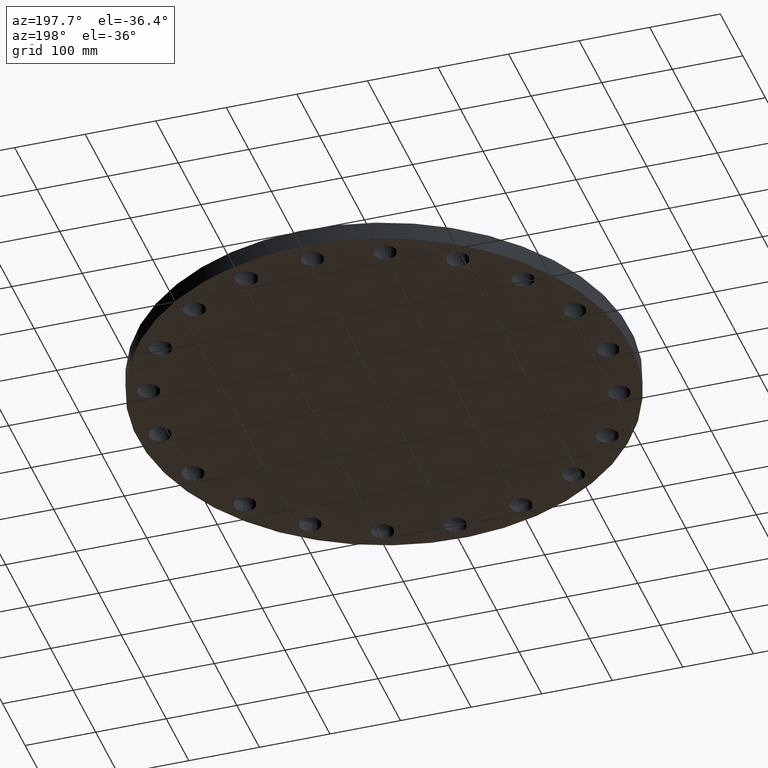
[diagram: clean part render]
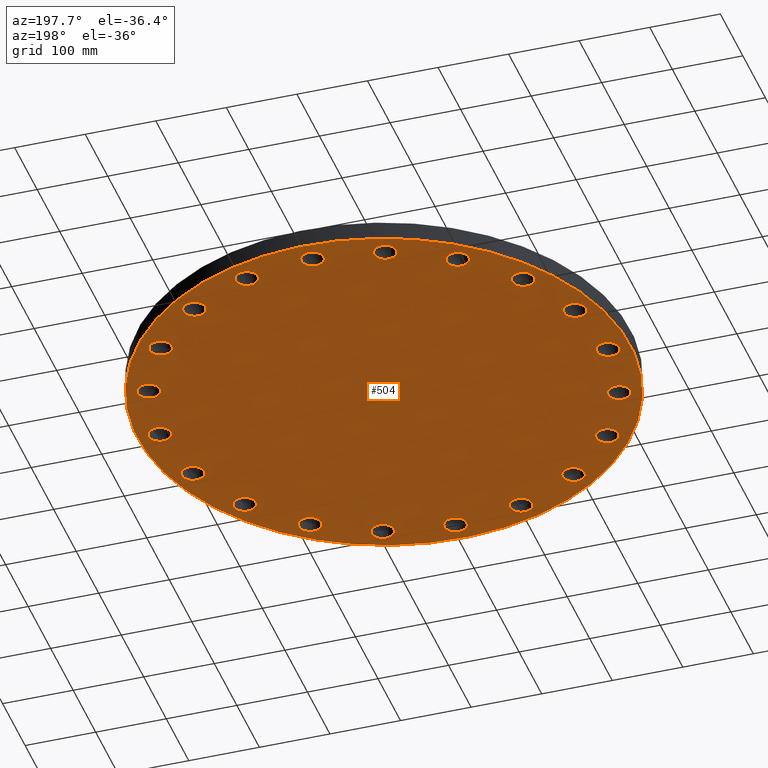
[diagram: same view with one face highlighted and labeled with its STEP entity id]
A machine part, auxiliary view. The second image highlights one B-rep face of the part: STEP entity #504.
In plain terms, the highlighted planar face has unit normal (0, 0, 1).
Its self-contained STEP definition (entity closure, byte-faithful):
#51=AXIS2_PLACEMENT_3D('Circle Axis2P3D',#49,#50,$) ;
#77=AXIS2_PLACEMENT_3D('Circle Axis2P3D',#75,#76,$) ;
#122=AXIS2_PLACEMENT_3D('Circle Axis2P3D',#120,#121,$) ;
#139=AXIS2_PLACEMENT_3D('Circle Axis2P3D',#137,#138,$) ;
#152=AXIS2_PLACEMENT_3D('Plane Axis2P3D',#149,#150,#151) ;
#164=AXIS2_PLACEMENT_3D('Circle Axis2P3D',#162,#163,$) ;
#173=AXIS2_PLACEMENT_3D('Circle Axis2P3D',#171,#172,$) ;
#182=AXIS2_PLACEMENT_3D('Circle Axis2P3D',#180,#181,$) ;
#191=AXIS2_PLACEMENT_3D('Circle Axis2P3D',#189,#190,$) ;
#200=AXIS2_PLACEMENT_3D('Circle Axis2P3D',#198,#199,$) ;
#209=AXIS2_PLACEMENT_3D('Circle Axis2P3D',#207,#208,$) ;
#218=AXIS2_PLACEMENT_3D('Circle Axis2P3D',#216,#217,$) ;
#227=AXIS2_PLACEMENT_3D('Circle Axis2P3D',#225,#226,$) ;
#236=AXIS2_PLACEMENT_3D('Circle Axis2P3D',#234,#235,$) ;
#245=AXIS2_PLACEMENT_3D('Circle Axis2P3D',#243,#244,$) ;
#254=AXIS2_PLACEMENT_3D('Circle Axis2P3D',#252,#253,$) ;
#263=AXIS2_PLACEMENT_3D('Circle Axis2P3D',#261,#262,$) ;
#272=AXIS2_PLACEMENT_3D('Circle Axis2P3D',#270,#271,$) ;
#281=AXIS2_PLACEMENT_3D('Circle Axis2P3D',#279,#280,$) ;
#290=AXIS2_PLACEMENT_3D('Circle Axis2P3D',#288,#289,$) ;
#299=AXIS2_PLACEMENT_3D('Circle Axis2P3D',#297,#298,$) ;
#308=AXIS2_PLACEMENT_3D('Circle Axis2P3D',#306,#307,$) ;
#317=AXIS2_PLACEMENT_3D('Circle Axis2P3D',#315,#316,$) ;
#326=AXIS2_PLACEMENT_3D('Circle Axis2P3D',#324,#325,$) ;
#335=AXIS2_PLACEMENT_3D('Circle Axis2P3D',#333,#334,$) ;
#344=AXIS2_PLACEMENT_3D('Circle Axis2P3D',#342,#343,$) ;
#353=AXIS2_PLACEMENT_3D('Circle Axis2P3D',#351,#352,$) ;
#362=AXIS2_PLACEMENT_3D('Circle Axis2P3D',#360,#361,$) ;
#371=AXIS2_PLACEMENT_3D('Circle Axis2P3D',#369,#370,$) ;
#380=AXIS2_PLACEMENT_3D('Circle Axis2P3D',#378,#379,$) ;
#389=AXIS2_PLACEMENT_3D('Circle Axis2P3D',#387,#388,$) ;
#398=AXIS2_PLACEMENT_3D('Circle Axis2P3D',#396,#397,$) ;
#407=AXIS2_PLACEMENT_3D('Circle Axis2P3D',#405,#406,$) ;
#416=AXIS2_PLACEMENT_3D('Circle Axis2P3D',#414,#415,$) ;
#425=AXIS2_PLACEMENT_3D('Circle Axis2P3D',#423,#424,$) ;
#434=AXIS2_PLACEMENT_3D('Circle Axis2P3D',#432,#433,$) ;
#443=AXIS2_PLACEMENT_3D('Circle Axis2P3D',#441,#442,$) ;
#452=AXIS2_PLACEMENT_3D('Circle Axis2P3D',#450,#451,$) ;
#461=AXIS2_PLACEMENT_3D('Circle Axis2P3D',#459,#460,$) ;
#470=AXIS2_PLACEMENT_3D('Circle Axis2P3D',#468,#469,$) ;
#479=AXIS2_PLACEMENT_3D('Circle Axis2P3D',#477,#478,$) ;
#488=AXIS2_PLACEMENT_3D('Circle Axis2P3D',#486,#487,$) ;
#497=AXIS2_PLACEMENT_3D('Circle Axis2P3D',#495,#496,$) ;
#44=CARTESIAN_POINT('Vertex',(11.9515108989,0.299640961629,0.)) ;
#49=CARTESIAN_POINT('Axis2P3D Location',(12.5000000001,0.,0.)) ;
#53=CARTESIAN_POINT('Vertex',(13.0484891012,-0.299640961629,0.)) ;
#75=CARTESIAN_POINT('Axis2P3D Location',(12.5000000001,0.,0.)) ;
#101=CARTESIAN_POINT('Vertex',(12.066760226,6.59210115583,6.99353086378E-017)) ;
#117=CARTESIAN_POINT('Vertex',(-12.066760226,-6.59210115583,6.99353086378E-017)) ;
#120=CARTESIAN_POINT('Axis2P3D Location',(0.,0.,0.)) ;
#137=CARTESIAN_POINT('Axis2P3D Location',(0.,0.,0.)) ;
#149=CARTESIAN_POINT('Axis2P3D Location',(0.,0.,0.)) ;
#162=CARTESIAN_POINT('Axis2P3D Location',(11.8882064537,3.8627124297,0.)) ;
#166=CARTESIAN_POINT('Vertex',(11.2739681706,3.97819546531,0.)) ;
#168=CARTESIAN_POINT('Vertex',(12.5024447369,3.74722939409,0.)) ;
#171=CARTESIAN_POINT('Axis2P3D Location',(11.8882064537,3.8627124297,0.)) ;
#180=CARTESIAN_POINT('Axis2P3D Location',(10.1127124297,7.34731565369,0.)) ;
#184=CARTESIAN_POINT('Vertex',(9.49285088741,7.26733647913,0.)) ;
#186=CARTESIAN_POINT('Vertex',(10.732573972,7.42729482824,0.)) ;
#189=CARTESIAN_POINT('Axis2P3D Location',(10.1127124297,7.34731565369,0.)) ;
#198=CARTESIAN_POINT('Axis2P3D Location',(7.34731565369,10.1127124297,0.)) ;
#202=CARTESIAN_POINT('Vertex',(6.7825072188,9.84509996387,0.)) ;
#204=CARTESIAN_POINT('Vertex',(7.91212408857,10.3803248956,0.)) ;
#207=CARTESIAN_POINT('Axis2P3D Location',(7.34731565369,10.1127124297,0.)) ;
#216=CARTESIAN_POINT('Axis2P3D Location',(3.8627124297,11.8882064537,0.)) ;
#220=CARTESIAN_POINT('Vertex',(3.4082444871,11.4591564693,0.)) ;
#222=CARTESIAN_POINT('Vertex',(4.3171803723,12.3172564382,0.)) ;
#225=CARTESIAN_POINT('Axis2P3D Location',(3.8627124297,11.8882064537,0.)) ;
#234=CARTESIAN_POINT('Axis2P3D Location',(4.19611851827E-015,12.5000000001,0.)) ;
#238=CARTESIAN_POINT('Vertex',(-0.299640961629,11.9515108989,0.)) ;
#240=CARTESIAN_POINT('Vertex',(0.299640961629,13.0484891012,0.)) ;
#243=CARTESIAN_POINT('Axis2P3D Location',(3.21702419734E-015,12.5,0.)) ;
#252=CARTESIAN_POINT('Axis2P3D Location',(-3.8627124297,11.8882064537,0.)) ;
#256=CARTESIAN_POINT('Vertex',(-3.97819546531,11.2739681706,0.)) ;
#258=CARTESIAN_POINT('Vertex',(-3.74722939409,12.5024447369,0.)) ;
#261=CARTESIAN_POINT('Axis2P3D Location',(-3.8627124297,11.8882064537,0.)) ;
#270=CARTESIAN_POINT('Axis2P3D Location',(-7.34731565369,10.1127124297,0.)) ;
#274=CARTESIAN_POINT('Vertex',(-7.26733647913,9.49285088741,0.)) ;
#276=CARTESIAN_POINT('Vertex',(-7.42729482824,10.732573972,0.)) ;
#279=CARTESIAN_POINT('Axis2P3D Location',(-7.34731565369,10.1127124297,0.)) ;
#288=CARTESIAN_POINT('Axis2P3D Location',(-10.1127124297,7.34731565369,0.)) ;
#292=CARTESIAN_POINT('Vertex',(-9.84509996387,6.7825072188,0.)) ;
#294=CARTESIAN_POINT('Vertex',(-10.3803248956,7.91212408857,0.)) ;
#297=CARTESIAN_POINT('Axis2P3D Location',(-10.1127124297,7.34731565369,0.)) ;
#306=CARTESIAN_POINT('Axis2P3D Location',(-11.8882064537,3.8627124297,0.)) ;
#310=CARTESIAN_POINT('Vertex',(-11.4591564693,3.4082444871,0.)) ;
#312=CARTESIAN_POINT('Vertex',(-12.3172564382,4.3171803723,0.)) ;
#315=CARTESIAN_POINT('Axis2P3D Location',(-11.8882064537,3.8627124297,0.)) ;
#324=CARTESIAN_POINT('Axis2P3D Location',(-12.5000000001,5.66475999966E-015,0.)) ;
#328=CARTESIAN_POINT('Vertex',(-11.9515108989,-0.299640961629,0.)) ;
#330=CARTESIAN_POINT('Vertex',(-13.0484891012,0.299640961629,0.)) ;
#333=CARTESIAN_POINT('Axis2P3D Location',(-12.5000000001,7.62294864152E-015,0.)) ;
#342=CARTESIAN_POINT('Axis2P3D Location',(-11.8882064537,-3.8627124297,0.)) ;
#346=CARTESIAN_POINT('Vertex',(-11.2739681706,-3.97819546531,0.)) ;
#348=CARTESIAN_POINT('Vertex',(-12.5024447369,-3.74722939409,0.)) ;
#351=CARTESIAN_POINT('Axis2P3D Location',(-11.8882064537,-3.8627124297,0.)) ;
#360=CARTESIAN_POINT('Axis2P3D Location',(-10.1127124297,-7.34731565369,0.)) ;
#364=CARTESIAN_POINT('Vertex',(-9.49285088741,-7.26733647913,0.)) ;
#366=CARTESIAN_POINT('Vertex',(-10.732573972,-7.42729482824,0.)) ;
#369=CARTESIAN_POINT('Axis2P3D Location',(-10.1127124297,-7.34731565369,0.)) ;
#378=CARTESIAN_POINT('Axis2P3D Location',(-7.34731565369,-10.1127124297,0.)) ;
#382=CARTESIAN_POINT('Vertex',(-6.7825072188,-9.84509996387,0.)) ;
#384=CARTESIAN_POINT('Vertex',(-7.91212408857,-10.3803248956,0.)) ;
#387=CARTESIAN_POINT('Axis2P3D Location',(-7.34731565369,-10.1127124297,0.)) ;
#396=CARTESIAN_POINT('Axis2P3D Location',(-3.8627124297,-11.8882064537,0.)) ;
#400=CARTESIAN_POINT('Vertex',(-3.4082444871,-11.4591564693,0.)) ;
#402=CARTESIAN_POINT('Vertex',(-4.3171803723,-12.3172564382,0.)) ;
#405=CARTESIAN_POINT('Axis2P3D Location',(-3.8627124297,-11.8882064537,0.)) ;
#414=CARTESIAN_POINT('Axis2P3D Location',(-1.32877086412E-014,-12.5000000001,0.)) ;
#418=CARTESIAN_POINT('Vertex',(0.299640961629,-11.9515108989,0.)) ;
#420=CARTESIAN_POINT('Vertex',(-0.299640961629,-13.0484891012,0.)) ;
#423=CARTESIAN_POINT('Axis2P3D Location',(-1.32877086412E-014,-12.5000000001,0.)) ;
#432=CARTESIAN_POINT('Axis2P3D Location',(3.8627124297,-11.8882064537,0.)) ;
#436=CARTESIAN_POINT('Vertex',(3.97819546531,-11.2739681706,0.)) ;
#438=CARTESIAN_POINT('Vertex',(3.74722939409,-12.5024447369,0.)) ;
#441=CARTESIAN_POINT('Axis2P3D Location',(3.8627124297,-11.8882064537,0.)) ;
#450=CARTESIAN_POINT('Axis2P3D Location',(7.34731565369,-10.1127124297,0.)) ;
#454=CARTESIAN_POINT('Vertex',(7.26733647913,-9.49285088741,0.)) ;
#456=CARTESIAN_POINT('Vertex',(7.42729482824,-10.732573972,0.)) ;
#459=CARTESIAN_POINT('Axis2P3D Location',(7.34731565369,-10.1127124297,0.)) ;
#468=CARTESIAN_POINT('Axis2P3D Location',(10.1127124297,-7.34731565369,0.)) ;
#472=CARTESIAN_POINT('Vertex',(9.84509996387,-6.7825072188,0.)) ;
#474=CARTESIAN_POINT('Vertex',(10.3803248956,-7.91212408857,0.)) ;
#477=CARTESIAN_POINT('Axis2P3D Location',(10.1127124297,-7.34731565369,0.)) ;
#486=CARTESIAN_POINT('Axis2P3D Location',(11.8882064537,-3.8627124297,0.)) ;
#490=CARTESIAN_POINT('Vertex',(11.4591564693,-3.4082444871,0.)) ;
#492=CARTESIAN_POINT('Vertex',(12.3172564382,-4.3171803723,0.)) ;
#495=CARTESIAN_POINT('Axis2P3D Location',(11.8882064537,-3.8627124297,0.)) ;
#50=DIRECTION('Axis2P3D Direction',(0.,-0.,-0.0393700787402)) ;
#76=DIRECTION('Axis2P3D Direction',(0.,-0.,-0.0393700787402)) ;
#121=DIRECTION('Axis2P3D Direction',(0.,0.,0.0393700787402)) ;
#138=DIRECTION('Axis2P3D Direction',(0.,0.,0.0393700787402)) ;
#150=DIRECTION('Axis2P3D Direction',(0.,0.,0.0393700787402)) ;
#151=DIRECTION('Axis2P3D XDirection',(0.0393700787402,0.,0.)) ;
#163=DIRECTION('Axis2P3D Direction',(0.,0.,0.0393700787402)) ;
#172=DIRECTION('Axis2P3D Direction',(0.,0.,0.0393700787402)) ;
#181=DIRECTION('Axis2P3D Direction',(0.,0.,0.0393700787402)) ;
#190=DIRECTION('Axis2P3D Direction',(0.,0.,0.0393700787402)) ;
#199=DIRECTION('Axis2P3D Direction',(0.,0.,0.0393700787402)) ;
#208=DIRECTION('Axis2P3D Direction',(0.,0.,0.0393700787402)) ;
#217=DIRECTION('Axis2P3D Direction',(0.,0.,0.0393700787402)) ;
#226=DIRECTION('Axis2P3D Direction',(0.,0.,0.0393700787402)) ;
#235=DIRECTION('Axis2P3D Direction',(0.,0.,0.0393700787402)) ;
#244=DIRECTION('Axis2P3D Direction',(0.,0.,0.0393700787402)) ;
#253=DIRECTION('Axis2P3D Direction',(0.,0.,0.0393700787402)) ;
#262=DIRECTION('Axis2P3D Direction',(0.,0.,0.0393700787402)) ;
#271=DIRECTION('Axis2P3D Direction',(0.,0.,0.0393700787402)) ;
#280=DIRECTION('Axis2P3D Direction',(0.,0.,0.0393700787402)) ;
#289=DIRECTION('Axis2P3D Direction',(0.,0.,0.0393700787402)) ;
#298=DIRECTION('Axis2P3D Direction',(0.,0.,0.0393700787402)) ;
#307=DIRECTION('Axis2P3D Direction',(0.,0.,0.0393700787402)) ;
#316=DIRECTION('Axis2P3D Direction',(0.,0.,0.0393700787402)) ;
#325=DIRECTION('Axis2P3D Direction',(0.,0.,0.0393700787402)) ;
#334=DIRECTION('Axis2P3D Direction',(0.,0.,0.0393700787402)) ;
#343=DIRECTION('Axis2P3D Direction',(0.,0.,0.0393700787402)) ;
#352=DIRECTION('Axis2P3D Direction',(0.,0.,0.0393700787402)) ;
#361=DIRECTION('Axis2P3D Direction',(0.,0.,0.0393700787402)) ;
#370=DIRECTION('Axis2P3D Direction',(0.,0.,0.0393700787402)) ;
#379=DIRECTION('Axis2P3D Direction',(0.,0.,0.0393700787402)) ;
#388=DIRECTION('Axis2P3D Direction',(0.,0.,0.0393700787402)) ;
#397=DIRECTION('Axis2P3D Direction',(0.,0.,0.0393700787402)) ;
#406=DIRECTION('Axis2P3D Direction',(0.,0.,0.0393700787402)) ;
#415=DIRECTION('Axis2P3D Direction',(0.,0.,0.0393700787402)) ;
#424=DIRECTION('Axis2P3D Direction',(0.,0.,0.0393700787402)) ;
#433=DIRECTION('Axis2P3D Direction',(0.,0.,0.0393700787402)) ;
#442=DIRECTION('Axis2P3D Direction',(0.,0.,0.0393700787402)) ;
#451=DIRECTION('Axis2P3D Direction',(0.,0.,0.0393700787402)) ;
#460=DIRECTION('Axis2P3D Direction',(0.,0.,0.0393700787402)) ;
#469=DIRECTION('Axis2P3D Direction',(0.,0.,0.0393700787402)) ;
#478=DIRECTION('Axis2P3D Direction',(0.,0.,0.0393700787402)) ;
#487=DIRECTION('Axis2P3D Direction',(0.,0.,0.0393700787402)) ;
#496=DIRECTION('Axis2P3D Direction',(0.,0.,0.0393700787402)) ;
#155=ORIENTED_EDGE('',*,*,#124,.F.) ;
#156=ORIENTED_EDGE('',*,*,#141,.F.) ;
#159=ORIENTED_EDGE('',*,*,#55,.T.) ;
#160=ORIENTED_EDGE('',*,*,#79,.T.) ;
#177=ORIENTED_EDGE('',*,*,#170,.T.) ;
#178=ORIENTED_EDGE('',*,*,#175,.T.) ;
#195=ORIENTED_EDGE('',*,*,#188,.T.) ;
#196=ORIENTED_EDGE('',*,*,#193,.T.) ;
#213=ORIENTED_EDGE('',*,*,#206,.T.) ;
#214=ORIENTED_EDGE('',*,*,#211,.T.) ;
#231=ORIENTED_EDGE('',*,*,#224,.T.) ;
#232=ORIENTED_EDGE('',*,*,#229,.T.) ;
#249=ORIENTED_EDGE('',*,*,#242,.T.) ;
#250=ORIENTED_EDGE('',*,*,#247,.T.) ;
#267=ORIENTED_EDGE('',*,*,#260,.T.) ;
#268=ORIENTED_EDGE('',*,*,#265,.T.) ;
#285=ORIENTED_EDGE('',*,*,#278,.T.) ;
#286=ORIENTED_EDGE('',*,*,#283,.T.) ;
#303=ORIENTED_EDGE('',*,*,#296,.T.) ;
#304=ORIENTED_EDGE('',*,*,#301,.T.) ;
#321=ORIENTED_EDGE('',*,*,#314,.T.) ;
#322=ORIENTED_EDGE('',*,*,#319,.T.) ;
#339=ORIENTED_EDGE('',*,*,#332,.T.) ;
#340=ORIENTED_EDGE('',*,*,#337,.T.) ;
#357=ORIENTED_EDGE('',*,*,#350,.T.) ;
#358=ORIENTED_EDGE('',*,*,#355,.T.) ;
#375=ORIENTED_EDGE('',*,*,#368,.T.) ;
#376=ORIENTED_EDGE('',*,*,#373,.T.) ;
#393=ORIENTED_EDGE('',*,*,#386,.T.) ;
#394=ORIENTED_EDGE('',*,*,#391,.T.) ;
#411=ORIENTED_EDGE('',*,*,#404,.T.) ;
#412=ORIENTED_EDGE('',*,*,#409,.T.) ;
#429=ORIENTED_EDGE('',*,*,#422,.T.) ;
#430=ORIENTED_EDGE('',*,*,#427,.T.) ;
#447=ORIENTED_EDGE('',*,*,#440,.T.) ;
#448=ORIENTED_EDGE('',*,*,#445,.T.) ;
#465=ORIENTED_EDGE('',*,*,#458,.T.) ;
#466=ORIENTED_EDGE('',*,*,#463,.T.) ;
#483=ORIENTED_EDGE('',*,*,#476,.T.) ;
#484=ORIENTED_EDGE('',*,*,#481,.T.) ;
#501=ORIENTED_EDGE('',*,*,#494,.T.) ;
#502=ORIENTED_EDGE('',*,*,#499,.T.) ;
#161=FACE_BOUND('',#158,.T.) ;
#179=FACE_BOUND('',#176,.T.) ;
#197=FACE_BOUND('',#194,.T.) ;
#215=FACE_BOUND('',#212,.T.) ;
#233=FACE_BOUND('',#230,.T.) ;
#251=FACE_BOUND('',#248,.T.) ;
#269=FACE_BOUND('',#266,.T.) ;
#287=FACE_BOUND('',#284,.T.) ;
#305=FACE_BOUND('',#302,.T.) ;
#323=FACE_BOUND('',#320,.T.) ;
#341=FACE_BOUND('',#338,.T.) ;
#359=FACE_BOUND('',#356,.T.) ;
#377=FACE_BOUND('',#374,.T.) ;
#395=FACE_BOUND('',#392,.T.) ;
#413=FACE_BOUND('',#410,.T.) ;
#431=FACE_BOUND('',#428,.T.) ;
#449=FACE_BOUND('',#446,.T.) ;
#467=FACE_BOUND('',#464,.T.) ;
#485=FACE_BOUND('',#482,.T.) ;
#503=FACE_BOUND('',#500,.T.) ;
#504=ADVANCED_FACE('PartBody',(#157,#161,#179,#197,#215,#233,#251,#269,#287,#305,#323,#341,#359,#377,#395,#413,#431,#449,#467,#485,#503),#153,.F.) ;
#52=CIRCLE('generated circle',#51,0.625000000002) ;
#78=CIRCLE('generated circle',#77,0.625000000002) ;
#123=CIRCLE('generated circle',#122,13.7500000001) ;
#140=CIRCLE('generated circle',#139,13.7500000001) ;
#165=CIRCLE('generated circle',#164,0.625000000002) ;
#174=CIRCLE('generated circle',#173,0.625000000002) ;
#183=CIRCLE('generated circle',#182,0.625000000003) ;
#192=CIRCLE('generated circle',#191,0.625000000003) ;
#201=CIRCLE('generated circle',#200,0.625000000003) ;
#210=CIRCLE('generated circle',#209,0.625000000003) ;
#219=CIRCLE('generated circle',#218,0.625000000003) ;
#228=CIRCLE('generated circle',#227,0.625000000003) ;
#237=CIRCLE('generated circle',#236,0.625000000002) ;
#246=CIRCLE('generated circle',#245,0.625000000002) ;
#255=CIRCLE('generated circle',#254,0.625000000002) ;
#264=CIRCLE('generated circle',#263,0.625000000002) ;
#273=CIRCLE('generated circle',#272,0.625000000002) ;
#282=CIRCLE('generated circle',#281,0.625000000003) ;
#291=CIRCLE('generated circle',#290,0.625000000003) ;
#300=CIRCLE('generated circle',#299,0.625000000003) ;
#309=CIRCLE('generated circle',#308,0.625000000003) ;
#318=CIRCLE('generated circle',#317,0.625000000003) ;
#327=CIRCLE('generated circle',#326,0.625000000003) ;
#336=CIRCLE('generated circle',#335,0.625000000003) ;
#345=CIRCLE('generated circle',#344,0.625000000002) ;
#354=CIRCLE('generated circle',#353,0.625000000002) ;
#363=CIRCLE('generated circle',#362,0.625000000002) ;
#372=CIRCLE('generated circle',#371,0.625000000003) ;
#381=CIRCLE('generated circle',#380,0.625000000003) ;
#390=CIRCLE('generated circle',#389,0.625000000003) ;
#399=CIRCLE('generated circle',#398,0.625000000003) ;
#408=CIRCLE('generated circle',#407,0.625000000003) ;
#417=CIRCLE('generated circle',#416,0.625000000002) ;
#426=CIRCLE('generated circle',#425,0.625000000002) ;
#435=CIRCLE('generated circle',#434,0.625000000002) ;
#444=CIRCLE('generated circle',#443,0.625000000002) ;
#453=CIRCLE('generated circle',#452,0.625000000002) ;
#462=CIRCLE('generated circle',#461,0.625000000003) ;
#471=CIRCLE('generated circle',#470,0.625000000003) ;
#480=CIRCLE('generated circle',#479,0.625000000003) ;
#489=CIRCLE('generated circle',#488,0.625000000003) ;
#498=CIRCLE('generated circle',#497,0.625000000003) ;
#55=EDGE_CURVE('',#54,#45,#52,.F.) ;
#79=EDGE_CURVE('',#45,#54,#78,.F.) ;
#124=EDGE_CURVE('',#118,#102,#123,.T.) ;
#141=EDGE_CURVE('',#102,#118,#140,.T.) ;
#170=EDGE_CURVE('',#167,#169,#165,.T.) ;
#175=EDGE_CURVE('',#169,#167,#174,.T.) ;
#188=EDGE_CURVE('',#185,#187,#183,.T.) ;
#193=EDGE_CURVE('',#187,#185,#192,.T.) ;
#206=EDGE_CURVE('',#203,#205,#201,.T.) ;
#211=EDGE_CURVE('',#205,#203,#210,.T.) ;
#224=EDGE_CURVE('',#221,#223,#219,.T.) ;
#229=EDGE_CURVE('',#223,#221,#228,.T.) ;
#242=EDGE_CURVE('',#239,#241,#237,.T.) ;
#247=EDGE_CURVE('',#241,#239,#246,.T.) ;
#260=EDGE_CURVE('',#257,#259,#255,.T.) ;
#265=EDGE_CURVE('',#259,#257,#264,.T.) ;
#278=EDGE_CURVE('',#275,#277,#273,.T.) ;
#283=EDGE_CURVE('',#277,#275,#282,.T.) ;
#296=EDGE_CURVE('',#293,#295,#291,.T.) ;
#301=EDGE_CURVE('',#295,#293,#300,.T.) ;
#314=EDGE_CURVE('',#311,#313,#309,.T.) ;
#319=EDGE_CURVE('',#313,#311,#318,.T.) ;
#332=EDGE_CURVE('',#329,#331,#327,.T.) ;
#337=EDGE_CURVE('',#331,#329,#336,.T.) ;
#350=EDGE_CURVE('',#347,#349,#345,.T.) ;
#355=EDGE_CURVE('',#349,#347,#354,.T.) ;
#368=EDGE_CURVE('',#365,#367,#363,.T.) ;
#373=EDGE_CURVE('',#367,#365,#372,.T.) ;
#386=EDGE_CURVE('',#383,#385,#381,.T.) ;
#391=EDGE_CURVE('',#385,#383,#390,.T.) ;
#404=EDGE_CURVE('',#401,#403,#399,.T.) ;
#409=EDGE_CURVE('',#403,#401,#408,.T.) ;
#422=EDGE_CURVE('',#419,#421,#417,.T.) ;
#427=EDGE_CURVE('',#421,#419,#426,.T.) ;
#440=EDGE_CURVE('',#437,#439,#435,.T.) ;
#445=EDGE_CURVE('',#439,#437,#444,.T.) ;
#458=EDGE_CURVE('',#455,#457,#453,.T.) ;
#463=EDGE_CURVE('',#457,#455,#462,.T.) ;
#476=EDGE_CURVE('',#473,#475,#471,.T.) ;
#481=EDGE_CURVE('',#475,#473,#480,.T.) ;
#494=EDGE_CURVE('',#491,#493,#489,.T.) ;
#499=EDGE_CURVE('',#493,#491,#498,.T.) ;
#154=EDGE_LOOP('',(#155,#156)) ;
#158=EDGE_LOOP('',(#159,#160)) ;
#176=EDGE_LOOP('',(#177,#178)) ;
#194=EDGE_LOOP('',(#195,#196)) ;
#212=EDGE_LOOP('',(#213,#214)) ;
#230=EDGE_LOOP('',(#231,#232)) ;
#248=EDGE_LOOP('',(#249,#250)) ;
#266=EDGE_LOOP('',(#267,#268)) ;
#284=EDGE_LOOP('',(#285,#286)) ;
#302=EDGE_LOOP('',(#303,#304)) ;
#320=EDGE_LOOP('',(#321,#322)) ;
#338=EDGE_LOOP('',(#339,#340)) ;
#356=EDGE_LOOP('',(#357,#358)) ;
#374=EDGE_LOOP('',(#375,#376)) ;
#392=EDGE_LOOP('',(#393,#394)) ;
#410=EDGE_LOOP('',(#411,#412)) ;
#428=EDGE_LOOP('',(#429,#430)) ;
#446=EDGE_LOOP('',(#447,#448)) ;
#464=EDGE_LOOP('',(#465,#466)) ;
#482=EDGE_LOOP('',(#483,#484)) ;
#500=EDGE_LOOP('',(#501,#502)) ;
#157=FACE_OUTER_BOUND('',#154,.T.) ;
#153=PLANE('',#152) ;
#45=VERTEX_POINT('',#44) ;
#54=VERTEX_POINT('',#53) ;
#102=VERTEX_POINT('',#101) ;
#118=VERTEX_POINT('',#117) ;
#167=VERTEX_POINT('',#166) ;
#169=VERTEX_POINT('',#168) ;
#185=VERTEX_POINT('',#184) ;
#187=VERTEX_POINT('',#186) ;
#203=VERTEX_POINT('',#202) ;
#205=VERTEX_POINT('',#204) ;
#221=VERTEX_POINT('',#220) ;
#223=VERTEX_POINT('',#222) ;
#239=VERTEX_POINT('',#238) ;
#241=VERTEX_POINT('',#240) ;
#257=VERTEX_POINT('',#256) ;
#259=VERTEX_POINT('',#258) ;
#275=VERTEX_POINT('',#274) ;
#277=VERTEX_POINT('',#276) ;
#293=VERTEX_POINT('',#292) ;
#295=VERTEX_POINT('',#294) ;
#311=VERTEX_POINT('',#310) ;
#313=VERTEX_POINT('',#312) ;
#329=VERTEX_POINT('',#328) ;
#331=VERTEX_POINT('',#330) ;
#347=VERTEX_POINT('',#346) ;
#349=VERTEX_POINT('',#348) ;
#365=VERTEX_POINT('',#364) ;
#367=VERTEX_POINT('',#366) ;
#383=VERTEX_POINT('',#382) ;
#385=VERTEX_POINT('',#384) ;
#401=VERTEX_POINT('',#400) ;
#403=VERTEX_POINT('',#402) ;
#419=VERTEX_POINT('',#418) ;
#421=VERTEX_POINT('',#420) ;
#437=VERTEX_POINT('',#436) ;
#439=VERTEX_POINT('',#438) ;
#455=VERTEX_POINT('',#454) ;
#457=VERTEX_POINT('',#456) ;
#473=VERTEX_POINT('',#472) ;
#475=VERTEX_POINT('',#474) ;
#491=VERTEX_POINT('',#490) ;
#493=VERTEX_POINT('',#492) ;